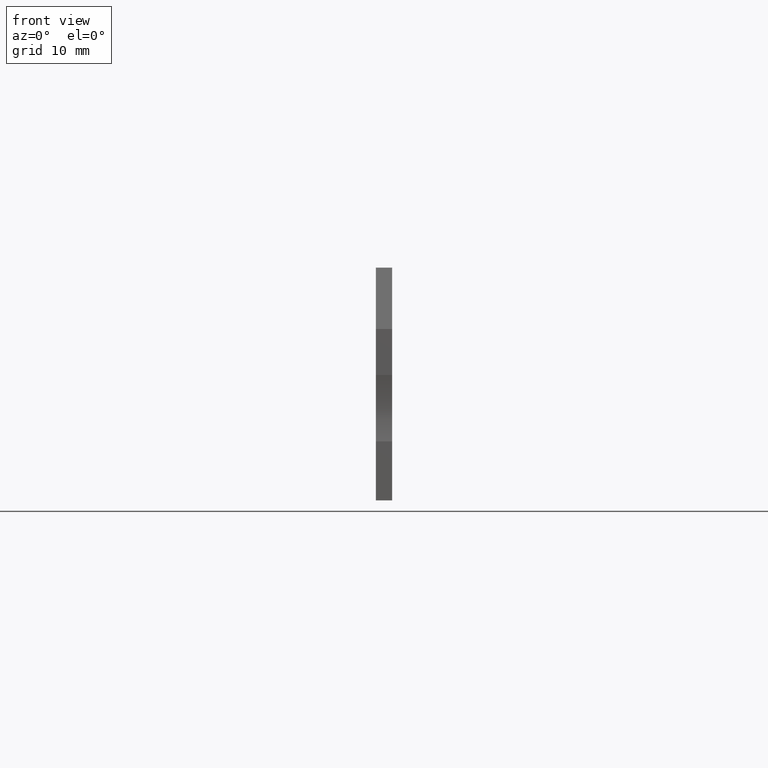
[diagram: clean part render]
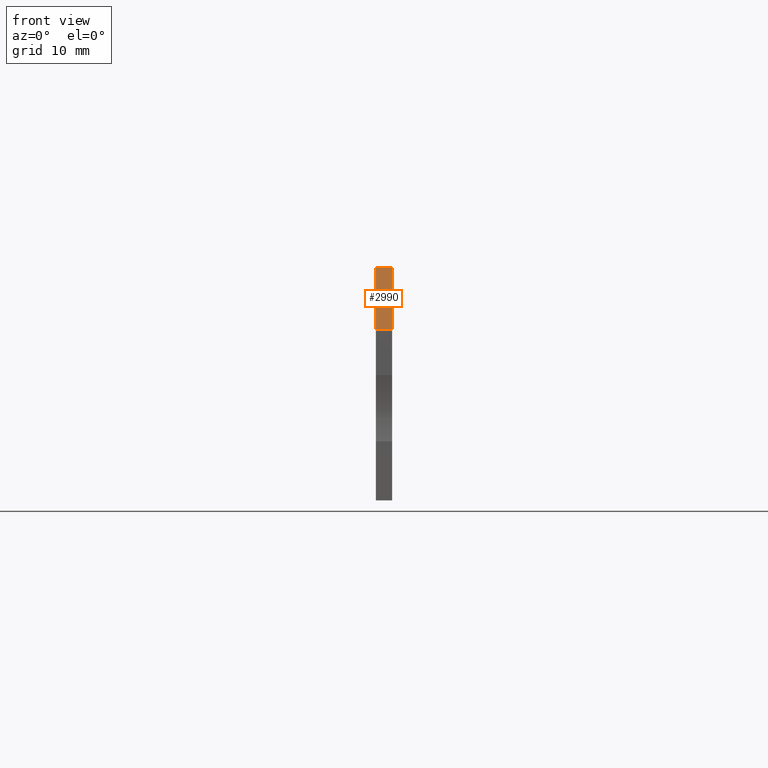
[diagram: same view with one face highlighted and labeled with its STEP entity id]
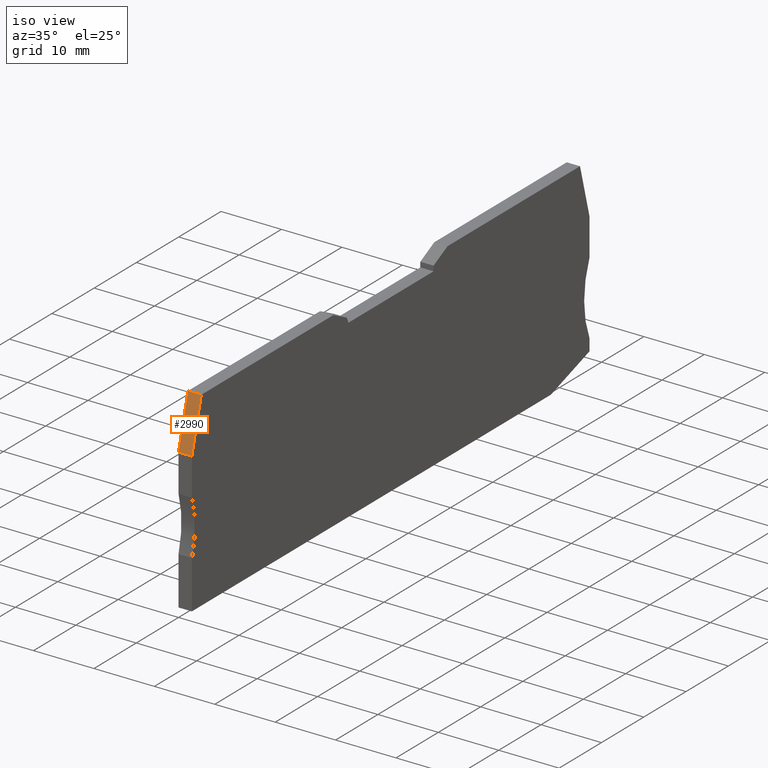
[diagram: same view with one face highlighted and labeled with its STEP entity id]
A machine part, front view. The second image highlights one B-rep face of the part: STEP entity #2990.
A second angle (iso view) of the same face is appended — the face is thin or edge-on in the first view.
In plain terms, the highlighted planar face has unit normal (-0, -0.9659, 0.2588).
Its self-contained STEP definition (entity closure, byte-faithful):
#1640=CARTESIAN_POINT('',(-8.87031917530947,-14.9655444566314,
2.19999999999843));
#1650=VERTEX_POINT('',#1640);
#1680=CARTESIAN_POINT('',(-13.9400739881395,-33.886127,2.19999999999837)
);
#1690=DIRECTION('',(-0.258819045102903,-0.965925826288966,
-2.96984659087229E-15));
#1700=VECTOR('',#1690,1.);
#1710=LINE('',#1680,#1700);
#1720=CARTESIAN_POINT('',(-6.64217575352925,-6.65000000001046,
2.19999999999845));
#1730=VERTEX_POINT('',#1720);
#1740=EDGE_CURVE('',#1730,#1650,#1710,.T.);
#2690=CARTESIAN_POINT('',(-6.74147517268441,-7.02059047745902,
2.19999999999997));
#2700=DIRECTION('',(-0.965925826288966,0.258819045102903,0.));
#2710=DIRECTION('',(0.258819045102903,0.965925826288966,0.));
#2720=AXIS2_PLACEMENT_3D('',#2690,#2700,#2710);
#2730=PLANE('',#2720);
#2740=CARTESIAN_POINT('',(-13.9400739881395,-33.886127,
-3.68594044175551E-14));
#2750=DIRECTION('',(-0.258819045102903,-0.965925826288966,0.));
#2760=VECTOR('',#2750,1.);
#2770=LINE('',#2740,#2760);
#2780=CARTESIAN_POINT('',(-6.64217575352925,-6.65000000001046,
-3.68594044175551E-14));
#2790=VERTEX_POINT('',#2780);
#2800=CARTESIAN_POINT('',(-8.87031917530947,-14.9655444566314,
-3.68594044175551E-14));
#2810=VERTEX_POINT('',#2800);
#2820=EDGE_CURVE('',#2790,#2810,#2770,.T.);
#2830=ORIENTED_EDGE('',*,*,#2820,.T.);
#2840=CARTESIAN_POINT('',(-6.64217575352925,-6.65000000001046,
-2.8421709430404E-14));
#2850=DIRECTION('',(0.,0.,1.));
#2860=VECTOR('',#2850,1.);
#2870=LINE('',#2840,#2860);
#2880=EDGE_CURVE('',#2790,#1730,#2870,.T.);
#2890=ORIENTED_EDGE('',*,*,#2880,.F.);
#2900=ORIENTED_EDGE('',*,*,#1740,.F.);
#2910=CARTESIAN_POINT('',(-8.87031917530947,-14.9655444566314,
-2.8421709430404E-14));
#2920=DIRECTION('',(0.,0.,1.));
#2930=VECTOR('',#2920,1.);
#2940=LINE('',#2910,#2930);
#2950=EDGE_CURVE('',#2810,#1650,#2940,.T.);
#2960=ORIENTED_EDGE('',*,*,#2950,.T.);
#2970=EDGE_LOOP('',(#2960,#2900,#2890,#2830));
#2980=FACE_OUTER_BOUND('',#2970,.T.);
#2990=ADVANCED_FACE('',(#2980),#2730,.T.);